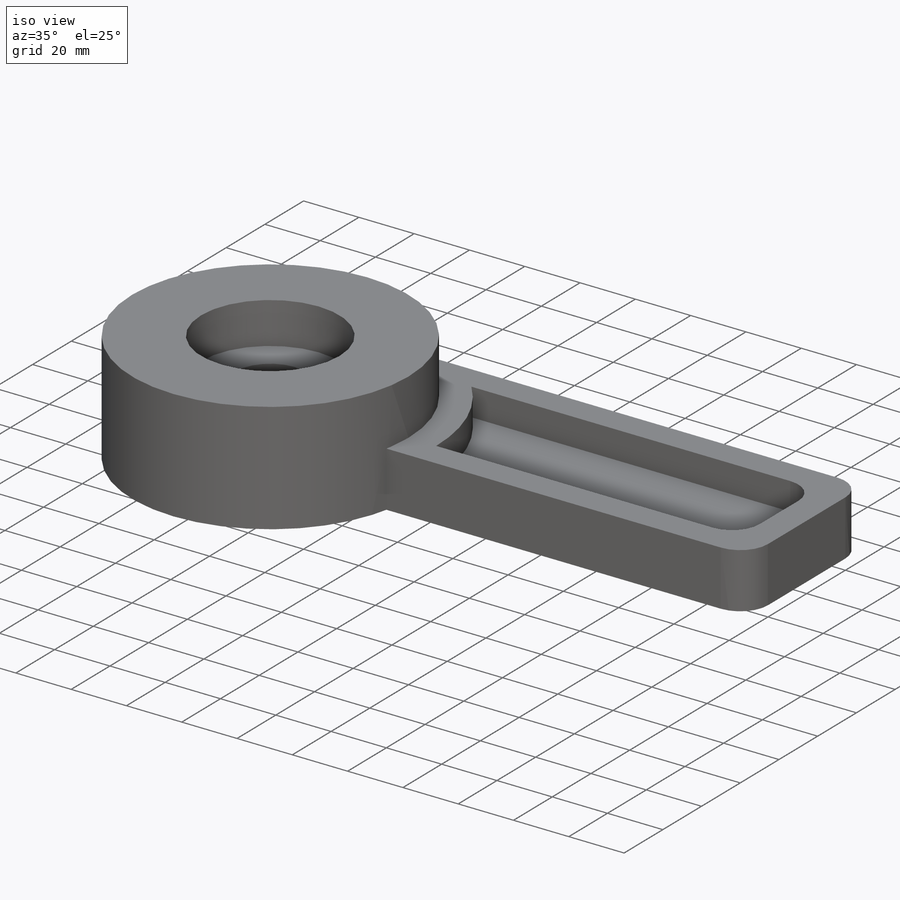
[diagram: iso view]
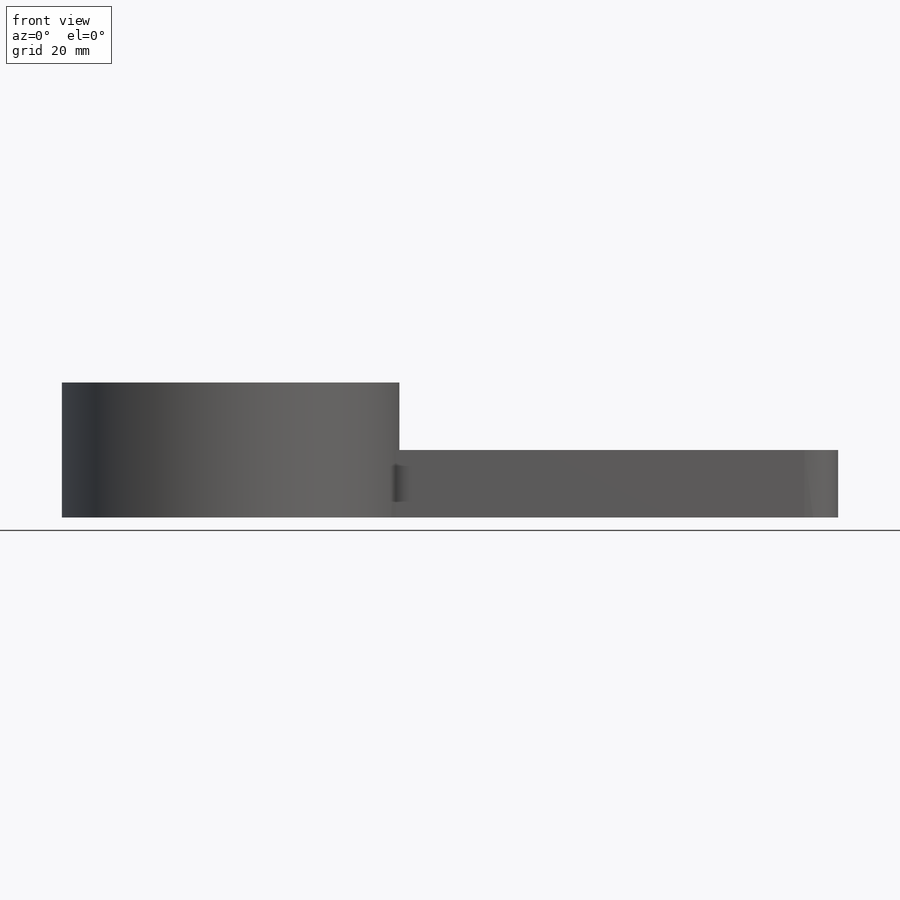
[diagram: front view]
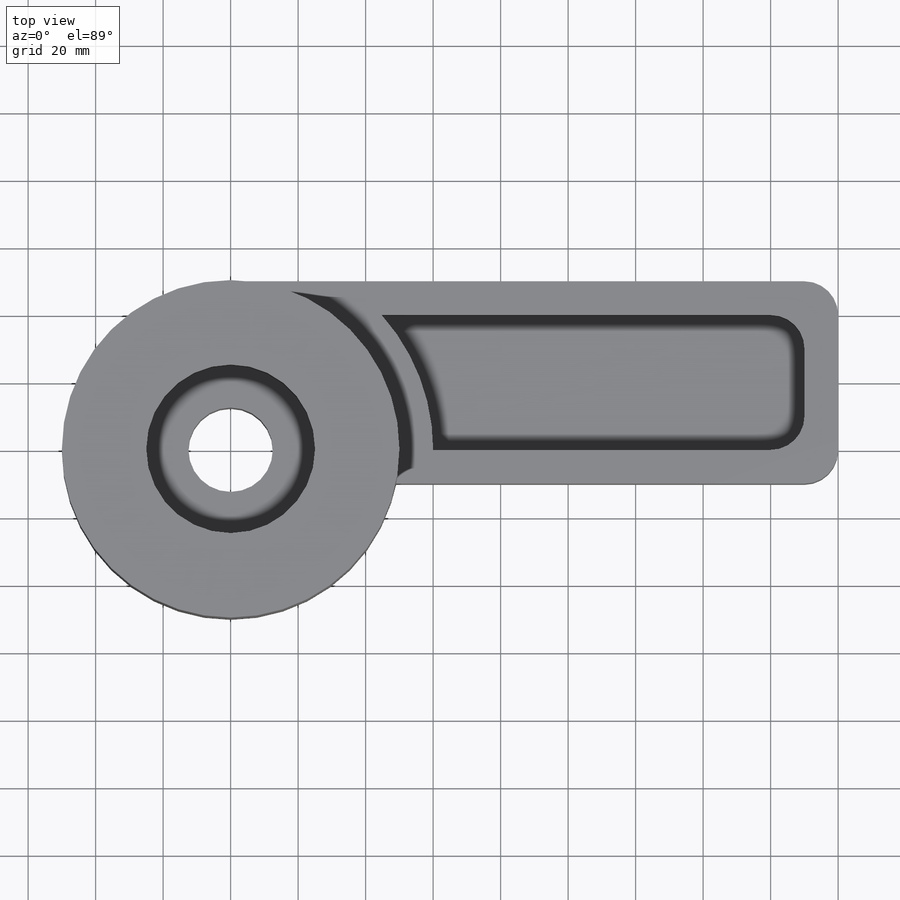
[diagram: top view]
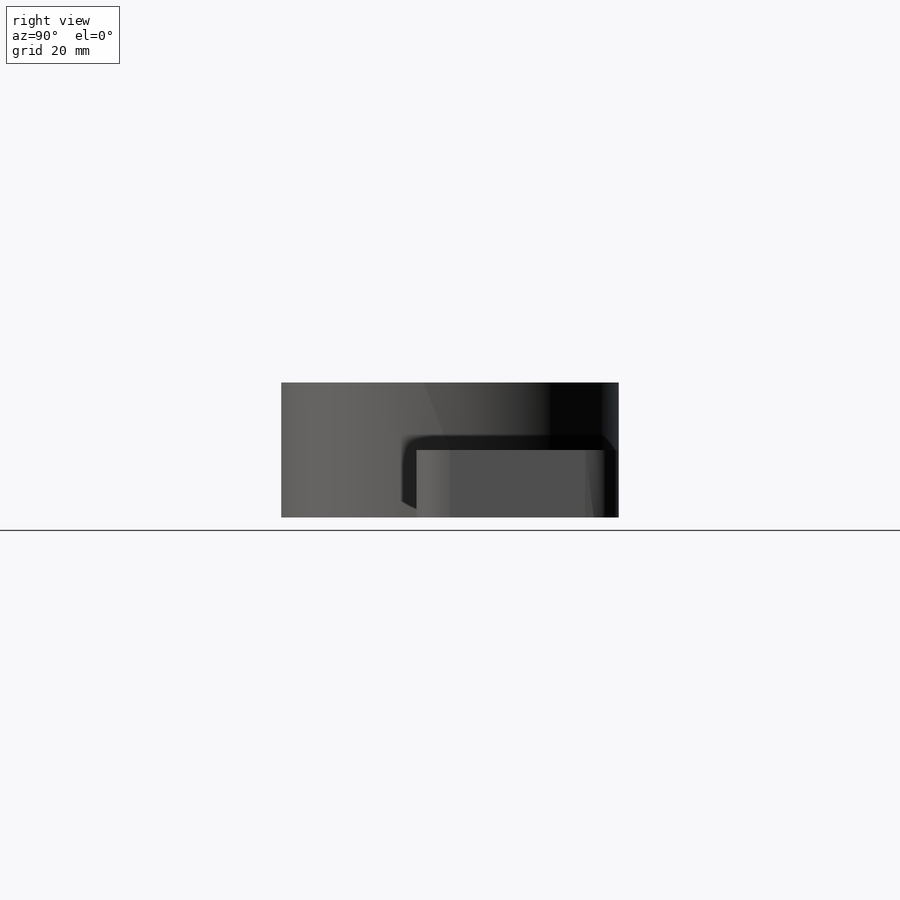
[diagram: right view]
SOLIDWORKS PART (.sldprt)
format: sldprt  version: not decoded by parser v0  size: 181,760 bytes
history: native  units: mm
features: sketch x5, plane x3, extrude x3, material x1, fillet x1, hole x1 + 3 further entries (+7 scaffold rows collapsed)
feature tree (24):
  scaffold x7  (default folders/planes/origin — collapsed)
  material  "재질 <지정안함>"
  "곡면 바디"
  "솔리드 바디"
  plane  "정면"
  plane  "윗면"
  plane  "우측면"
  "원점"
  sketch  "스케치2"  dims[c1.D1=100.0mm c1.D2=165.0mm c1.D3=50.0mm c2.D2=180.0mm c2.D3=60.0mm c2.D4=10.0mm]
  extrude  "보스-돌출1"  Depth=20mm
  extrude  "보스-돌출2"  [1 undecoded]
  sketch  "스케치2<4>"  dims[D1=40.0mm]
  extrude  "보스-돌출3"  [1 undecoded]
  sketch  "스케치2<5>"  dims[D1=10.0mm]
  fillet  "필렛1"  Radius=10mm
  hole  "M1.6 남비 머리 나사용 카운터보어1"  [1 undecoded]
  sketch  "스케치4"
  sketch  "스케치3"  dims[hole-wizard template sketch: 41 standard entries collapsed; hole parameters kept: c12.관통 구멍 지름=25.0mm c12.관통 구멍 깊이=40.0mm c12.카운터보어 지름=50.0mm c12.카운터보어 깊이=15.0mm]
decode coverage: 6 of 10 modeling features carry decoded parameters; 3 rows unclassified (native names shown)
note: ~ marks probable driven/reference dimensions
note: 3 parameter values undecoded
summary: no parameter record found for 3 features
note: suppression state not decoded; provenance and decode notes live in map.json
